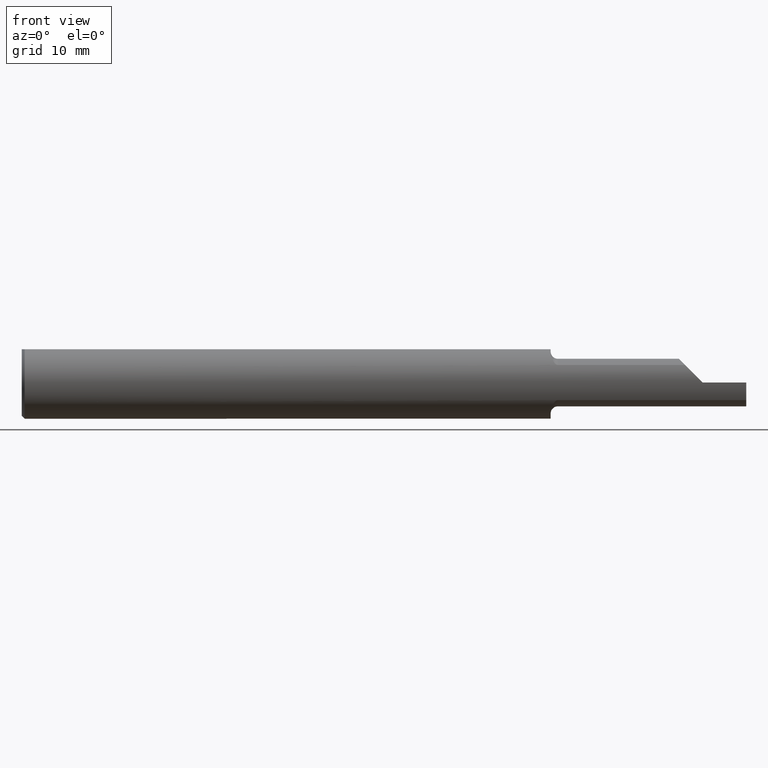
[diagram: clean part render]
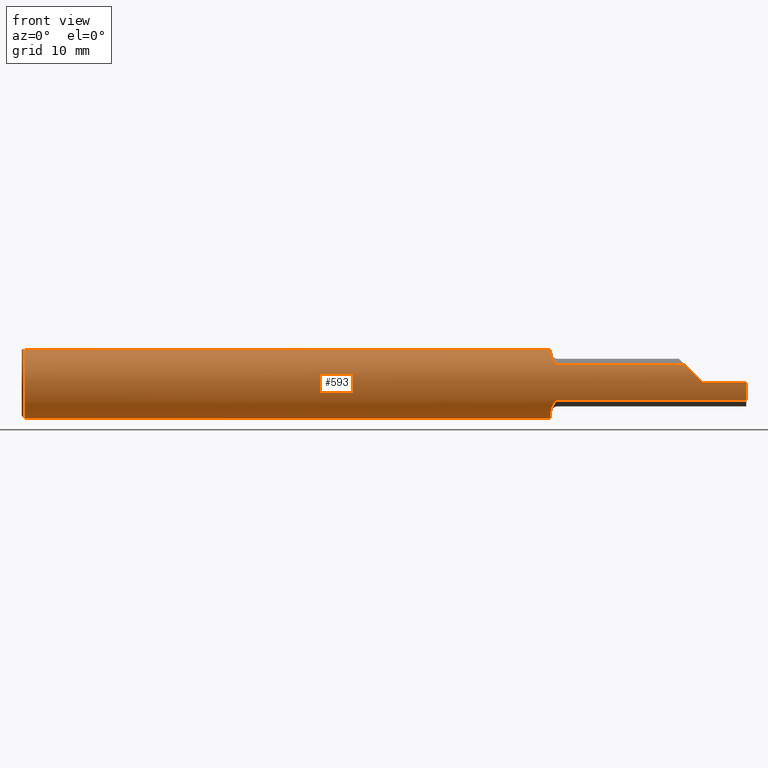
[diagram: same view with one face highlighted and labeled with its STEP entity id]
A machine part, front view. The second image highlights one B-rep face of the part: STEP entity #593.
In plain terms, the highlighted cylindrical surface (edge-blend (fillet) strip) has radius 3.1712 mm, axis along (-1, -0, -0).
Its self-contained STEP definition (entity closure, byte-faithful):
#1 = DIRECTION ( 'NONE',  ( 1.000000000000000000, 0.000000000000000000, 0.000000000000000000 ) ) ;
#15 = CARTESIAN_POINT ( 'NONE',  ( 1.839872773867706979, -0.1060950243526075920, 0.06584904124472092113 ) ) ;
#16 = EDGE_CURVE ( 'NONE', #883, #255, #676, .T. ) ;
#17 = ORIENTED_EDGE ( 'NONE', *, *, #63, .F. ) ;
#26 = EDGE_CURVE ( 'NONE', #517, #284, #748, .T. ) ;
#37 = ORIENTED_EDGE ( 'NONE', *, *, #91, .F. ) ;
#40 = DIRECTION ( 'NONE',  ( 0.000000000000000000, 0.000000000000000000, 1.000000000000000000 ) ) ;
#41 = VERTEX_POINT ( 'NONE', #269 ) ;
#44 = ORIENTED_EDGE ( 'NONE', *, *, #116, .F. ) ;
#48 = ORIENTED_EDGE ( 'NONE', *, *, #502, .F. ) ;
#50 = CIRCLE ( 'NONE', #380, 0.1248500000000000026 ) ;
#51 = EDGE_CURVE ( 'NONE', #784, #386, #187, .T. ) ;
#54 = CARTESIAN_POINT ( 'NONE',  ( 1.831574539397730073, -0.09671433139090024333, -0.07916850176471032507 ) ) ;
#56 = DIRECTION ( 'NONE',  ( -1.000000000000000000, -0.000000000000000000, -0.000000000000000000 ) ) ;
#58 = ORIENTED_EDGE ( 'NONE', *, *, #26, .F. ) ;
#61 = CARTESIAN_POINT ( 'NONE',  ( 1.846893101175498098, -0.1092232590529246400, -0.06047976671464364712 ) ) ;
#63 = EDGE_CURVE ( 'NONE', #893, #784, #247, .T. ) ;
#72 = DIRECTION ( 'NONE',  ( 0.000000000000000000, 0.000000000000000000, 1.000000000000000000 ) ) ;
#73 = CARTESIAN_POINT ( 'NONE',  ( 1.838167052038309990, -0.1047260336402100200, 0.06802262465471388408 ) ) ;
#80 = DIRECTION ( 'NONE',  ( 0.000000000000000000, 0.000000000000000000, -1.000000000000000000 ) ) ;
#91 = EDGE_CURVE ( 'NONE', #207, #393, #344, .T. ) ;
#101 = CARTESIAN_POINT ( 'NONE',  ( 1.825000000000000400, 0.04895916665957469188, 0.1148499999999999521 ) ) ;
#116 = EDGE_CURVE ( 'NONE', #284, #661, #567, .T. ) ;
#133 = FACE_OUTER_BOUND ( 'NONE', #173, .T. ) ;
#145 = CARTESIAN_POINT ( 'NONE',  ( 1.826996939049468249, -0.08458882217984113605, 0.09202120527030360764 ) ) ;
#153 = CARTESIAN_POINT ( 'NONE',  ( 0.000000000000000000, 0.000000000000000000, 0.000000000000000000 ) ) ;
#154 = CARTESIAN_POINT ( 'NONE',  ( 1.824999999999999734, -0.07054241148902920533, 0.1031911175192886804 ) ) ;
#162 = CARTESIAN_POINT ( 'NONE',  ( 1.825000000000000400, -0.06535139275766017886, -0.1063800637555460532 ) ) ;
#173 = EDGE_LOOP ( 'NONE', ( #902, #729, #395, #193, #392, #17, #48, #37, #832, #199, #277, #44, #58 ) ) ;
#180 = CARTESIAN_POINT ( 'NONE',  ( 2.144015190534282578, -0.1092232590529246400, -0.06047976671464362630 ) ) ;
#187 = LINE ( 'NONE', #457, #394 ) ;
#193 = ORIENTED_EDGE ( 'NONE', *, *, #740, .T. ) ;
#197 = CARTESIAN_POINT ( 'NONE',  ( 1.839871114993082646, -0.1060941439957362731, -0.06585051326907723213 ) ) ;
#199 = ORIENTED_EDGE ( 'NONE', *, *, #16, .T. ) ;
#200 = CARTESIAN_POINT ( 'NONE',  ( 1.825000000000000400, -0.06535139275766017886, 0.1063800637555460532 ) ) ;
#207 = VERTEX_POINT ( 'NONE', #448 ) ;
#214 = CYLINDRICAL_SURFACE ( 'NONE', #754, 0.1248500000000000026 ) ;
#217 = CIRCLE ( 'NONE', #359, 0.1248500000000000026 ) ;
#223 = CARTESIAN_POINT ( 'NONE',  ( 1.846904167968482779, -0.1092232590529397113, 0.06047976671461655768 ) ) ;
#233 = CARTESIAN_POINT ( 'NONE',  ( 2.350000000000000089, -0.1248500000000000165, 1.836970198721029441E-17 ) ) ;
#238 = CARTESIAN_POINT ( 'NONE',  ( 2.308130552538913527, -0.1195282781184591331, 0.04186944746108606924 ) ) ;
#245 = DIRECTION ( 'NONE',  ( -1.000000000000000000, -0.000000000000000000, -0.000000000000000000 ) ) ;
#247 = B_SPLINE_CURVE_WITH_KNOTS ( 'NONE', 3,
 ( #547, #154, #551, #145, #293, #633, #836, #73, #15, #696, #223, #494 ),
 .UNSPECIFIED., .F., .F.,
 ( 4, 2, 2, 2, 2, 4 ),
 ( 3.030490085919073487E-05, 0.0004889370798616852424, 0.0009475692588641792180, 0.001406201437866673410, 0.001635517527367919910, 0.001864833616869166410 ),
 .UNSPECIFIED. ) ;
#255 = VERTEX_POINT ( 'NONE', #798 ) ;
#269 = CARTESIAN_POINT ( 'NONE',  ( 2.500000000000000000, -0.1248500000000000026, 0.000000000000000000 ) ) ;
#277 = ORIENTED_EDGE ( 'NONE', *, *, #438, .F. ) ;
#282 = EDGE_CURVE ( 'NONE', #601, #41, #50, .T. ) ;
#284 = VERTEX_POINT ( 'NONE', #162 ) ;
#287 = DIRECTION ( 'NONE',  ( 1.000000000000000000, 0.000000000000000000, 0.000000000000000000 ) ) ;
#292 = DIRECTION ( 'NONE',  ( -1.000000000000000000, -0.000000000000000000, -0.000000000000000000 ) ) ;
#293 = CARTESIAN_POINT ( 'NONE',  ( 1.828207506445968411, -0.08891621056625834130, 0.08783733555405194571 ) ) ;
#294 = EDGE_CURVE ( 'NONE', #601, #517, #881, .T. ) ;
#309 = CARTESIAN_POINT ( 'NONE',  ( 2.328727073528534586, -0.1248500000000000026, 0.02127292647146517696 ) ) ;
#320 = LINE ( 'NONE', #890, #328 ) ;
#328 = VECTOR ( 'NONE', #56, 39.37007874015748143 ) ;
#331 = CARTESIAN_POINT ( 'NONE',  ( 1.825000000000000400, -0.06535139275766017886, -0.1063800637555460532 ) ) ;
#344 = LINE ( 'NONE', #782, #357 ) ;
#357 = VECTOR ( 'NONE', #287, 39.37007874015748143 ) ;
#359 = AXIS2_PLACEMENT_3D ( 'NONE', #424, #1, #407 ) ;
#380 = AXIS2_PLACEMENT_3D ( 'NONE', #513, #803, #40 ) ;
#386 = VERTEX_POINT ( 'NONE', #830 ) ;
#392 = ORIENTED_EDGE ( 'NONE', *, *, #51, .F. ) ;
#393 = VERTEX_POINT ( 'NONE', #825 ) ;
#394 = VECTOR ( 'NONE', #743, 39.37007874015748143 ) ;
#395 = ORIENTED_EDGE ( 'NONE', *, *, #866, .T. ) ;
#397 = CARTESIAN_POINT ( 'NONE',  ( 3.749399456654640735E-32, -0.1248499999999999888, 3.061616997868381169E-16 ) ) ;
#407 = DIRECTION ( 'NONE',  ( 0.000000000000000000, 0.000000000000000000, -1.000000000000000000 ) ) ;
#420 = DIRECTION ( 'NONE',  ( 1.000000000000000000, 0.000000000000000000, 0.000000000000000000 ) ) ;
#424 = CARTESIAN_POINT ( 'NONE',  ( 1.825000000000000400, 0.000000000000000000, 0.000000000000000000 ) ) ;
#438 = EDGE_CURVE ( 'NONE', #661, #255, #320, .T. ) ;
#447 = CARTESIAN_POINT ( 'NONE',  ( 2.350000000000000089, -0.1248500000000000165, 1.836970198721029441E-17 ) ) ;
#448 = CARTESIAN_POINT ( 'NONE',  ( 0.01000000000000014939, -0.04895916665957469188, 0.1148499999999999521 ) ) ;
#457 = CARTESIAN_POINT ( 'NONE',  ( 2.144015190534282578, -0.1092232590529246400, 0.06047976671464362630 ) ) ;
#460 = CARTESIAN_POINT ( 'NONE',  ( 1.838158879394964806, -0.1047178258151590519, -0.06803468955078918745 ) ) ;
#466 = CARTESIAN_POINT ( 'NONE',  ( 1.828216217036757074, -0.08893970397226953761, -0.08781254252886017131 ) ) ;
#475 = CARTESIAN_POINT ( 'NONE',  ( 1.827023439373510083, -0.08470251846230696102, -0.09191816578021545781 ) ) ;
#483 = AXIS2_PLACEMENT_3D ( 'NONE', #564, #857, #788 ) ;
#484 = AXIS2_PLACEMENT_3D ( 'NONE', #778, #420, #80 ) ;
#493 = CARTESIAN_POINT ( 'NONE',  ( 1.850000000000000311, -0.1092232590529246677, -0.06047976671464359855 ) ) ;
#494 = CARTESIAN_POINT ( 'NONE',  ( 1.850000000000000311, -0.1092232590529246400, 0.06047976671464363324 ) ) ;
#502 = EDGE_CURVE ( 'NONE', #393, #893, #217, .T. ) ;
#512 = CARTESIAN_POINT ( 'NONE',  ( 2.289520233285355921, -0.1092232590529246261, 0.06047976671464366100 ) ) ;
#513 = CARTESIAN_POINT ( 'NONE',  ( 2.500000000000000000, 0.000000000000000000, 0.000000000000000000 ) ) ;
#517 = VERTEX_POINT ( 'NONE', #493 ) ;
#535 = DIRECTION ( 'NONE',  ( 0.000000000000000000, 0.000000000000000000, -1.000000000000000000 ) ) ;
#542 = CARTESIAN_POINT ( 'NONE',  ( 1.844143490399571705, -0.1083244193956949403, -0.06211342568700058131 ) ) ;
#547 = CARTESIAN_POINT ( 'NONE',  ( 1.825000000000000400, -0.06535139275766017886, 0.1063800637555460532 ) ) ;
#551 = CARTESIAN_POINT ( 'NONE',  ( 1.825400300771547801, -0.07542150831050746518, 0.09967330204894483958 ) ) ;
#564 = CARTESIAN_POINT ( 'NONE',  ( 1.825000000000000400, 0.000000000000000000, 0.000000000000000000 ) ) ;
#566 = EDGE_CURVE ( 'NONE', #207, #883, #810, .T. ) ;
#567 = CIRCLE ( 'NONE', #483, 0.1248500000000000026 ) ;
#588 = LINE ( 'NONE', #397, #692 ) ;
#592 = CARTESIAN_POINT ( 'NONE',  ( 1.850000000000000311, -0.1092232590529246677, -0.06047976671464359855 ) ) ;
#593 = ADVANCED_FACE ( 'NONE', ( #133 ), #214, .T. ) ;
#601 = VERTEX_POINT ( 'NONE', #852 ) ;
#630 = AXIS2_PLACEMENT_3D ( 'NONE', #759, #886, #535 ) ;
#633 = CARTESIAN_POINT ( 'NONE',  ( 1.831572284412210427, -0.09671242829710852140, 0.07917194093600929405 ) ) ;
#661 = VERTEX_POINT ( 'NONE', #101 ) ;
#676 = CIRCLE ( 'NONE', #630, 0.1248500000000000026 ) ;
#678 = DIRECTION ( 'NONE',  ( -1.000000000000000000, -0.000000000000000000, -0.000000000000000000 ) ) ;
#680 = CARTESIAN_POINT ( 'NONE',  ( 1.825408339284914749, -0.07550530485030250427, -0.09961131850206336735 ) ) ;
#682 =( BOUNDED_CURVE ( )  B_SPLINE_CURVE ( 3, ( #233, #309, #238, #512 ),
 .UNSPECIFIED., .F., .F. ) 
 B_SPLINE_CURVE_WITH_KNOTS ( ( 4, 4 ),
 ( 4.712388980384689674, 5.218088401039802093 ),
 .UNSPECIFIED. ) 
 CURVE ( )  GEOMETRIC_REPRESENTATION_ITEM ( )  RATIONAL_B_SPLINE_CURVE ( ( 1.000000000000000000, 0.9788023059027125550, 0.9788023059027125550, 1.000000000000000000 ) ) 
 REPRESENTATION_ITEM ( '' )  );
#692 = VECTOR ( 'NONE', #678, 39.37007874015748143 ) ;
#696 = CARTESIAN_POINT ( 'NONE',  ( 1.844142011591956676, -0.1083236330372057132, 0.06211474020592980955 ) ) ;
#718 = VERTEX_POINT ( 'NONE', #447 ) ;
#729 = ORIENTED_EDGE ( 'NONE', *, *, #282, .T. ) ;
#735 = VECTOR ( 'NONE', #245, 39.37007874015748143 ) ;
#740 = EDGE_CURVE ( 'NONE', #718, #386, #682, .T. ) ;
#743 = DIRECTION ( 'NONE',  ( 1.000000000000000000, 0.000000000000000000, 0.000000000000000000 ) ) ;
#748 = B_SPLINE_CURVE_WITH_KNOTS ( 'NONE', 3,
 ( #592, #61, #542, #197, #460, #831, #54, #466, #475, #680, #749, #331 ),
 .UNSPECIFIED., .F., .F.,
 ( 4, 2, 2, 2, 2, 4 ),
 ( 1.963893730206510890E-07, 0.0002326901895015442815, 0.0004651839896300679245, 0.0009301715898871152103, 0.001395159190144162334, 0.001860146790401210216 ),
 .UNSPECIFIED. ) ;
#749 = CARTESIAN_POINT ( 'NONE',  ( 1.824999999999999956, -0.07054286491584026153, -0.1031908389701641643 ) ) ;
#754 = AXIS2_PLACEMENT_3D ( 'NONE', #153, #292, #72 ) ;
#759 = CARTESIAN_POINT ( 'NONE',  ( 0.01000000000000014939, 0.000000000000000000, 0.000000000000000000 ) ) ;
#778 = CARTESIAN_POINT ( 'NONE',  ( 0.01000000000000014939, 0.000000000000000000, 0.000000000000000000 ) ) ;
#782 = CARTESIAN_POINT ( 'NONE',  ( 0.000000000000000000, -0.04895916665957469188, 0.1148499999999999521 ) ) ;
#784 = VERTEX_POINT ( 'NONE', #884 ) ;
#788 = DIRECTION ( 'NONE',  ( 0.000000000000000000, 0.000000000000000000, -1.000000000000000000 ) ) ;
#798 = CARTESIAN_POINT ( 'NONE',  ( 0.01000000000000014939, 0.04895916665957469188, 0.1148499999999999521 ) ) ;
#803 = DIRECTION ( 'NONE',  ( -1.000000000000000000, -0.000000000000000000, -0.000000000000000000 ) ) ;
#810 = CIRCLE ( 'NONE', #484, 0.1248500000000000026 ) ;
#824 = CARTESIAN_POINT ( 'NONE',  ( 0.01000000000000014939, 0.000000000000000000, -0.1248500000000000026 ) ) ;
#825 = CARTESIAN_POINT ( 'NONE',  ( 1.825000000000000400, -0.04895916665957478209, 0.1148499999999999521 ) ) ;
#830 = CARTESIAN_POINT ( 'NONE',  ( 2.289520233285355921, -0.1092232590529246261, 0.06047976671464366100 ) ) ;
#831 = CARTESIAN_POINT ( 'NONE',  ( 1.833707043473947529, -0.1002470790731816996, -0.07460645910502526623 ) ) ;
#832 = ORIENTED_EDGE ( 'NONE', *, *, #566, .T. ) ;
#836 = CARTESIAN_POINT ( 'NONE',  ( 1.833690689866804613, -0.1002306550648290745, 0.07463060118330282211 ) ) ;
#852 = CARTESIAN_POINT ( 'NONE',  ( 2.500000000000000000, -0.1092232590529245151, -0.06047976671464359161 ) ) ;
#857 = DIRECTION ( 'NONE',  ( 1.000000000000000000, 0.000000000000000000, 0.000000000000000000 ) ) ;
#866 = EDGE_CURVE ( 'NONE', #41, #718, #588, .T. ) ;
#881 = LINE ( 'NONE', #180, #735 ) ;
#883 = VERTEX_POINT ( 'NONE', #824 ) ;
#884 = CARTESIAN_POINT ( 'NONE',  ( 1.850000000000000311, -0.1092232590529246400, 0.06047976671464363324 ) ) ;
#886 = DIRECTION ( 'NONE',  ( 1.000000000000000000, 0.000000000000000000, 0.000000000000000000 ) ) ;
#890 = CARTESIAN_POINT ( 'NONE',  ( 0.000000000000000000, 0.04895916665957469188, 0.1148499999999999521 ) ) ;
#893 = VERTEX_POINT ( 'NONE', #200 ) ;
#902 = ORIENTED_EDGE ( 'NONE', *, *, #294, .F. ) ;